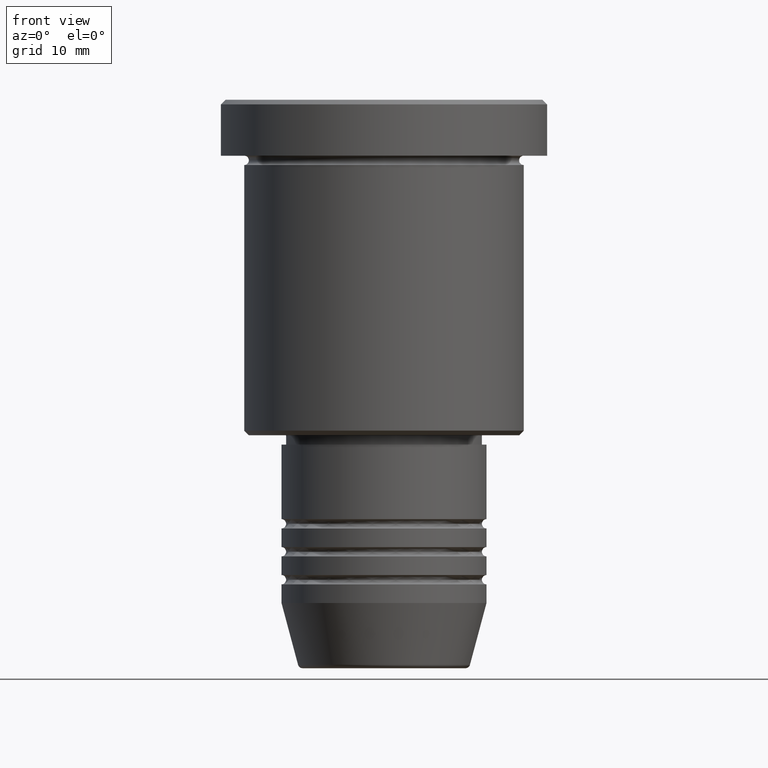
[diagram: clean part render]
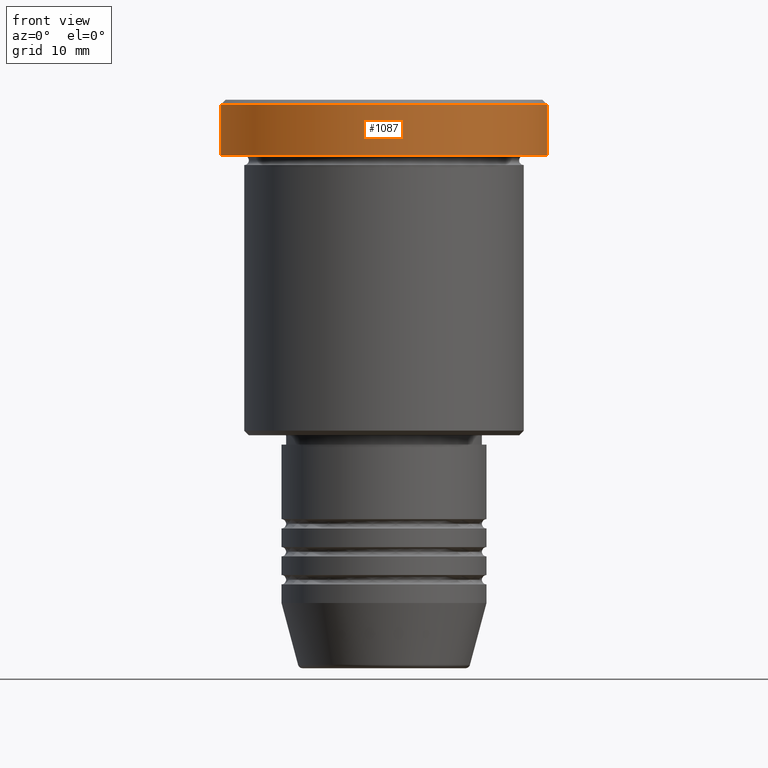
[diagram: same view with one face highlighted and labeled with its STEP entity id]
A machine part, front view. The second image highlights one B-rep face of the part: STEP entity #1087.
In plain terms, the highlighted cylindrical surface (partial cylindrical patch) has radius 17.5 mm, axis along (-0, -0, 1).
Its self-contained STEP definition (entity closure, byte-faithful):
#2 = DIRECTION ( 'NONE',  ( -0.000000000000000000, -0.000000000000000000, 1.000000000000000000 ) ) ;
#6 = ORIENTED_EDGE ( 'NONE', *, *, #1164, .F. ) ;
#19 = VERTEX_POINT ( 'NONE', #1075 ) ;
#23 = CARTESIAN_POINT ( 'NONE',  ( -17.50000000000000000, 2.143131898507868248E-15, -0.5000000000000143219 ) ) ;
#32 = DIRECTION ( 'NONE',  ( 1.000000000000000000, 0.000000000000000000, 0.000000000000000000 ) ) ;
#46 = VECTOR ( 'NONE', #2, 1000.000000000000000 ) ;
#52 = DIRECTION ( 'NONE',  ( -0.000000000000000000, -0.000000000000000000, 1.000000000000000000 ) ) ;
#54 = CYLINDRICAL_SURFACE ( 'NONE', #242, 17.50000000000000000 ) ;
#132 = CARTESIAN_POINT ( 'NONE',  ( 0.000000000000000000, 0.000000000000000000, -5.999999999999995559 ) ) ;
#142 = VERTEX_POINT ( 'NONE', #750 ) ;
#149 = FACE_OUTER_BOUND ( 'NONE', #978, .T. ) ;
#175 = CIRCLE ( 'NONE', #378, 17.50000000000000000 ) ;
#202 = ORIENTED_EDGE ( 'NONE', *, *, #786, .T. ) ;
#242 = AXIS2_PLACEMENT_3D ( 'NONE', #423, #888, #785 ) ;
#262 = VERTEX_POINT ( 'NONE', #23 ) ;
#338 = ORIENTED_EDGE ( 'NONE', *, *, #784, .T. ) ;
#349 = CARTESIAN_POINT ( 'NONE',  ( 0.000000000000000000, 0.000000000000000000, -0.5000000000000143219 ) ) ;
#351 = CARTESIAN_POINT ( 'NONE',  ( -17.50000000000000000, 2.143131898507868248E-15, -5.999999999999995559 ) ) ;
#373 = LINE ( 'NONE', #733, #46 ) ;
#378 = AXIS2_PLACEMENT_3D ( 'NONE', #349, #683, #32 ) ;
#399 = DIRECTION ( 'NONE',  ( -0.000000000000000000, -0.000000000000000000, 1.000000000000000000 ) ) ;
#423 = CARTESIAN_POINT ( 'NONE',  ( 0.000000000000000000, 0.000000000000000000, 0.000000000000000000 ) ) ;
#525 = DIRECTION ( 'NONE',  ( 1.000000000000000000, 0.000000000000000000, 0.000000000000000000 ) ) ;
#591 = CARTESIAN_POINT ( 'NONE',  ( 17.50000000000000000, 0.000000000000000000, 0.000000000000000000 ) ) ;
#613 = EDGE_CURVE ( 'NONE', #1034, #19, #798, .T. ) ;
#652 = AXIS2_PLACEMENT_3D ( 'NONE', #132, #52, #525 ) ;
#683 = DIRECTION ( 'NONE',  ( 0.000000000000000000, 0.000000000000000000, -1.000000000000000000 ) ) ;
#733 = CARTESIAN_POINT ( 'NONE',  ( -17.50000000000000000, 2.143131898507868248E-15, 0.000000000000000000 ) ) ;
#750 = CARTESIAN_POINT ( 'NONE',  ( 17.50000000000000000, 0.000000000000000000, -0.5000000000000143219 ) ) ;
#784 = EDGE_CURVE ( 'NONE', #142, #262, #175, .T. ) ;
#785 = DIRECTION ( 'NONE',  ( 1.000000000000000000, 0.000000000000000000, 0.000000000000000000 ) ) ;
#786 = EDGE_CURVE ( 'NONE', #19, #142, #852, .T. ) ;
#798 = CIRCLE ( 'NONE', #652, 17.50000000000000000 ) ;
#852 = LINE ( 'NONE', #591, #924 ) ;
#888 = DIRECTION ( 'NONE',  ( -0.000000000000000000, -0.000000000000000000, 1.000000000000000000 ) ) ;
#924 = VECTOR ( 'NONE', #399, 1000.000000000000000 ) ;
#978 = EDGE_LOOP ( 'NONE', ( #6, #1146, #202, #338 ) ) ;
#1034 = VERTEX_POINT ( 'NONE', #351 ) ;
#1075 = CARTESIAN_POINT ( 'NONE',  ( 17.50000000000000000, 0.000000000000000000, -5.999999999999995559 ) ) ;
#1087 = ADVANCED_FACE ( 'NONE', ( #149 ), #54, .T. ) ;
#1146 = ORIENTED_EDGE ( 'NONE', *, *, #613, .T. ) ;
#1164 = EDGE_CURVE ( 'NONE', #1034, #262, #373, .T. ) ;